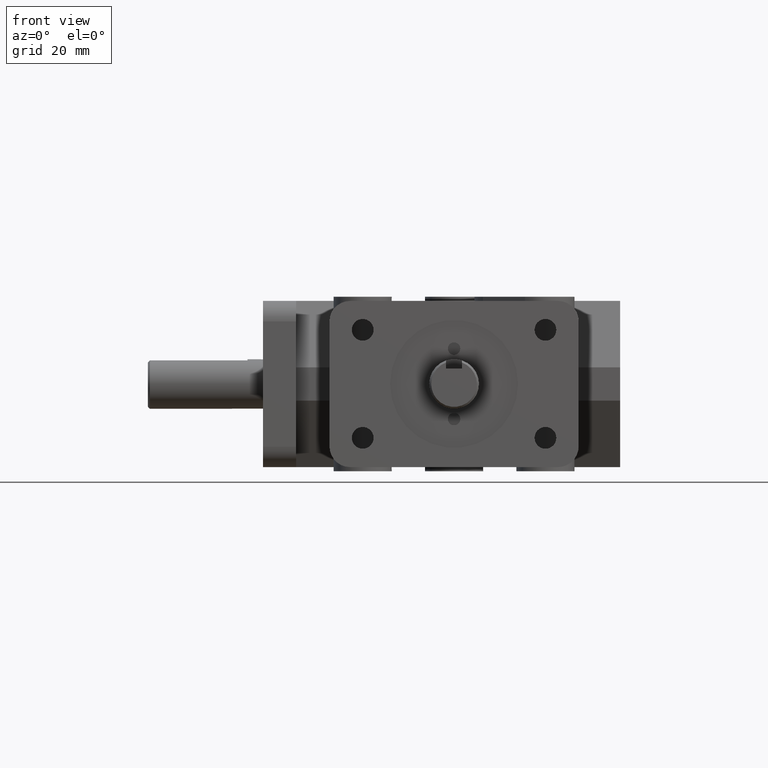
[diagram: clean part render]
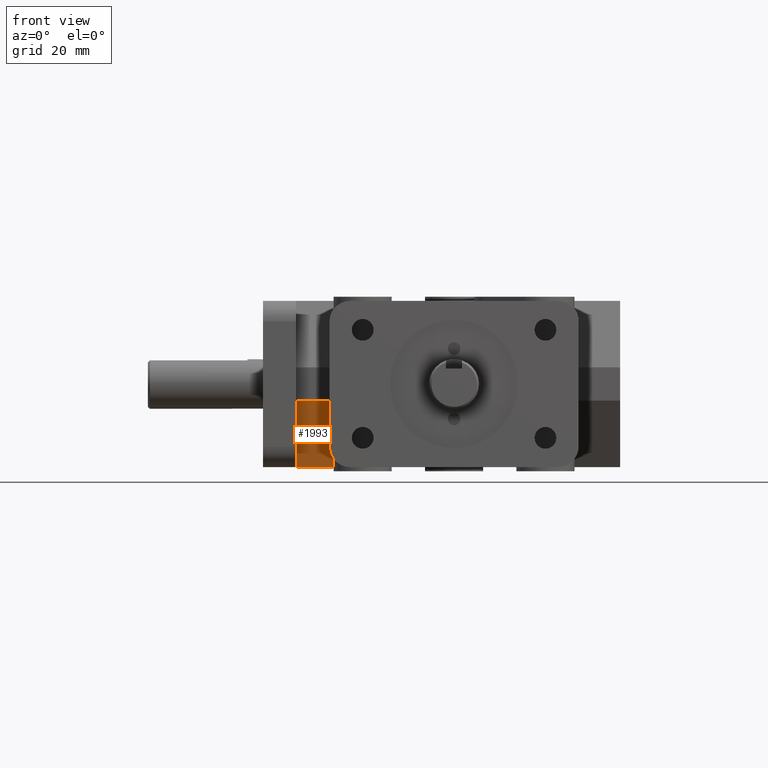
[diagram: same view with one face highlighted and labeled with its STEP entity id]
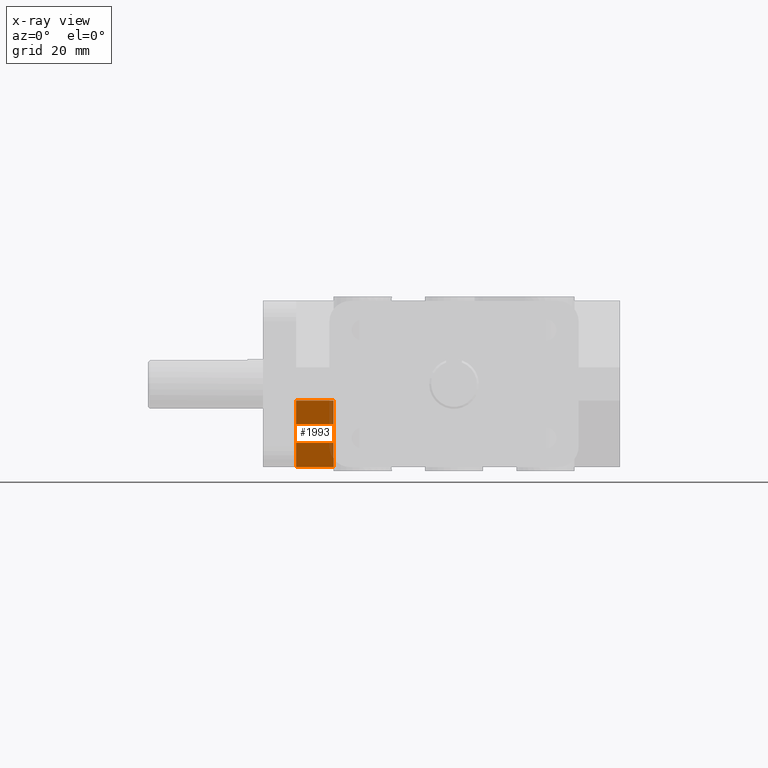
[diagram: x-ray of the same camera — body ghosted, the highlighted face saturated]
A machine part, front view. The second image highlights one B-rep face of the part: STEP entity #1993.
The next image is the same camera in x-ray: the body ghosted, the highlighted face saturated — about 9% of this face is hidden behind the body in this view.
In plain terms, the highlighted planar face has unit normal (0, -0.866, -0.5).
Its self-contained STEP definition (entity closure, byte-faithful):
#103=PLANE('',#2202);
#211=FACE_OUTER_BOUND('',#347,.T.);
#347=EDGE_LOOP('',(#1737,#1738,#1739,#1740));
#436=LINE('',#3042,#627);
#469=LINE('',#3123,#660);
#551=LINE('',#3344,#742);
#552=LINE('',#3345,#743);
#627=VECTOR('',#2452,1.);
#660=VECTOR('',#2511,1.);
#742=VECTOR('',#2735,1.);
#743=VECTOR('',#2736,1.);
#929=VERTEX_POINT('',#3039);
#930=VERTEX_POINT('',#3041);
#965=VERTEX_POINT('',#3121);
#1033=VERTEX_POINT('',#3343);
#1140=EDGE_CURVE('',#930,#929,#436,.F.);
#1183=EDGE_CURVE('',#929,#965,#469,.T.);
#1292=EDGE_CURVE('',#965,#1033,#551,.F.);
#1293=EDGE_CURVE('',#1033,#930,#552,.T.);
#1737=ORIENTED_EDGE('',*,*,#1140,.T.);
#1738=ORIENTED_EDGE('',*,*,#1183,.T.);
#1739=ORIENTED_EDGE('',*,*,#1292,.T.);
#1740=ORIENTED_EDGE('',*,*,#1293,.T.);
#1993=ADVANCED_FACE('',(#211),#103,.T.);
#2202=AXIS2_PLACEMENT_3D('',#3342,#2733,#2734);
#2452=DIRECTION('',(0.,-0.499999825156179,0.866025504730542));
#2511=DIRECTION('',(1.,0.,0.));
#2733=DIRECTION('center_axis',(0.,-0.866025504730542,-0.499999825156179));
#2734=DIRECTION('ref_axis',(0.,-0.499999825156179,0.866025504730542));
#2735=DIRECTION('',(0.,0.499999825156179,-0.866025504730542));
#2736=DIRECTION('',(-1.,0.,0.));
#3039=CARTESIAN_POINT('',(-60.325,94.03969,-31.75));
#3041=CARTESIAN_POINT('',(-60.325,79.375,-6.35));
#3042=CARTESIAN_POINT('',(-60.325,79.6819838798188,-6.88171192486159));
#3121=CARTESIAN_POINT('',(-46.0375,94.03969,-31.75));
#3123=CARTESIAN_POINT('',(-30.1625,94.03969,-31.75));
#3342=CARTESIAN_POINT('Origin',(-30.1625,86.707345,-19.05));
#3343=CARTESIAN_POINT('',(-46.0375,79.375,-6.35));
#3344=CARTESIAN_POINT('',(-46.0375,81.6663574919962,-10.318749444871));
#3345=CARTESIAN_POINT('',(-30.1625,79.375,-6.35));